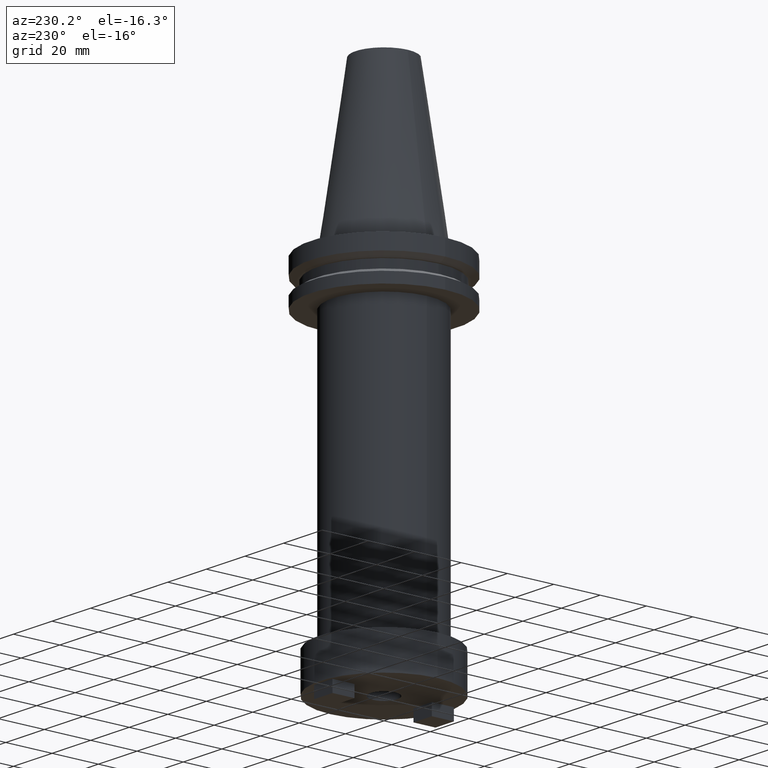
[diagram: clean part render]
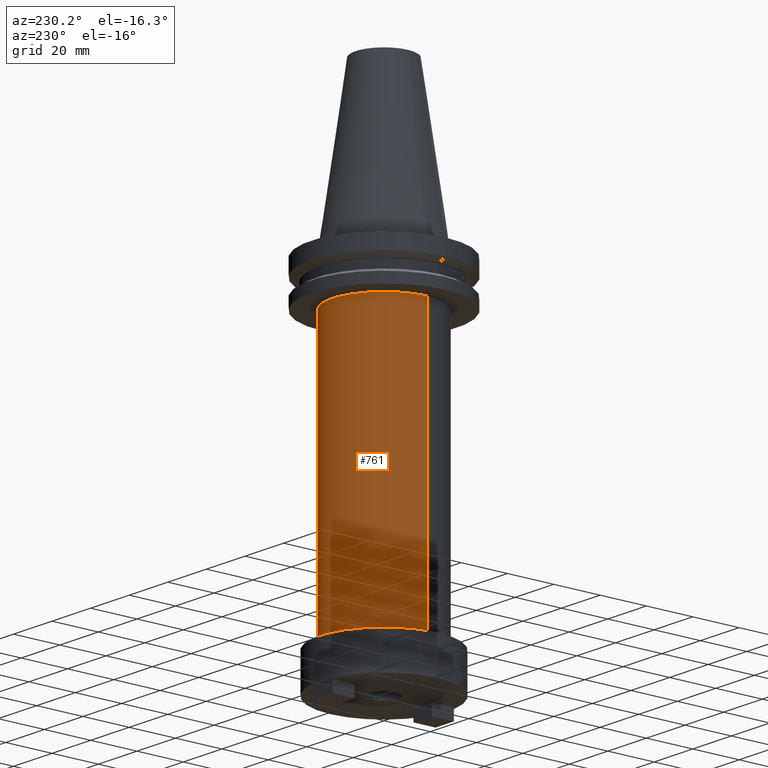
[diagram: same view with one face highlighted and labeled with its STEP entity id]
A machine part, auxiliary view. The second image highlights one B-rep face of the part: STEP entity #761.
In plain terms, the highlighted cylindrical surface (partial cylindrical patch) has radius 22.225 mm, axis along (-0, -0, 1).
Its self-contained STEP definition (entity closure, byte-faithful):
#27 = AXIS2_PLACEMENT_3D ( 'NONE', #956, #882, #970 ) ;
#29 = FACE_OUTER_BOUND ( 'NONE', #979, .T. ) ;
#78 = VERTEX_POINT ( 'NONE', #347 ) ;
#128 = EDGE_CURVE ( 'NONE', #78, #230, #841, .T. ) ;
#157 = VECTOR ( 'NONE', #470, 1000.000000000000000 ) ;
#159 = VERTEX_POINT ( 'NONE', #606 ) ;
#172 = DIRECTION ( 'NONE',  ( 1.000000000000000000, 0.000000000000000000, 0.000000000000000000 ) ) ;
#190 = CIRCLE ( 'NONE', #346, 22.22500000000000142 ) ;
#230 = VERTEX_POINT ( 'NONE', #370 ) ;
#240 = DIRECTION ( 'NONE',  ( -0.000000000000000000, -0.000000000000000000, 1.000000000000000000 ) ) ;
#283 = CYLINDRICAL_SURFACE ( 'NONE', #27, 22.22500000000000142 ) ;
#326 = EDGE_CURVE ( 'NONE', #667, #230, #1067, .T. ) ;
#346 = AXIS2_PLACEMENT_3D ( 'NONE', #645, #240, #568 ) ;
#347 = CARTESIAN_POINT ( 'NONE',  ( 22.22500000000000142, 0.000000000000000000, -19.04999999999999716 ) ) ;
#370 = CARTESIAN_POINT ( 'NONE',  ( -22.22500000000000142, 2.721777511104992849E-15, -19.04999999999999716 ) ) ;
#438 = EDGE_CURVE ( 'NONE', #159, #667, #190, .T. ) ;
#470 = DIRECTION ( 'NONE',  ( -0.000000000000000000, -0.000000000000000000, 1.000000000000000000 ) ) ;
#488 = CARTESIAN_POINT ( 'NONE',  ( 22.22500000000000142, 0.000000000000000000, 68.25000000000000000 ) ) ;
#504 = AXIS2_PLACEMENT_3D ( 'NONE', #769, #1089, #172 ) ;
#568 = DIRECTION ( 'NONE',  ( 1.000000000000000000, 0.000000000000000000, 0.000000000000000000 ) ) ;
#606 = CARTESIAN_POINT ( 'NONE',  ( 22.22500000000000142, 0.000000000000000000, -136.6500000000000057 ) ) ;
#636 = ORIENTED_EDGE ( 'NONE', *, *, #875, .F. ) ;
#640 = DIRECTION ( 'NONE',  ( -0.000000000000000000, -0.000000000000000000, 1.000000000000000000 ) ) ;
#645 = CARTESIAN_POINT ( 'NONE',  ( 0.000000000000000000, 0.000000000000000000, -136.6500000000000057 ) ) ;
#666 = CARTESIAN_POINT ( 'NONE',  ( -22.22500000000000142, 2.721777511104992849E-15, 68.25000000000000000 ) ) ;
#667 = VERTEX_POINT ( 'NONE', #795 ) ;
#718 = LINE ( 'NONE', #488, #157 ) ;
#719 = ORIENTED_EDGE ( 'NONE', *, *, #326, .T. ) ;
#761 = ADVANCED_FACE ( 'NONE', ( #29 ), #283, .T. ) ;
#769 = CARTESIAN_POINT ( 'NONE',  ( 0.000000000000000000, 0.000000000000000000, -19.04999999999999716 ) ) ;
#778 = VECTOR ( 'NONE', #640, 1000.000000000000000 ) ;
#795 = CARTESIAN_POINT ( 'NONE',  ( -22.22500000000000142, 2.721777511104992849E-15, -136.6500000000000057 ) ) ;
#841 = CIRCLE ( 'NONE', #504, 22.22500000000000142 ) ;
#875 = EDGE_CURVE ( 'NONE', #159, #78, #718, .T. ) ;
#882 = DIRECTION ( 'NONE',  ( -0.000000000000000000, -0.000000000000000000, 1.000000000000000000 ) ) ;
#951 = ORIENTED_EDGE ( 'NONE', *, *, #128, .F. ) ;
#956 = CARTESIAN_POINT ( 'NONE',  ( 0.000000000000000000, 0.000000000000000000, 68.25000000000000000 ) ) ;
#970 = DIRECTION ( 'NONE',  ( 1.000000000000000000, 0.000000000000000000, 0.000000000000000000 ) ) ;
#979 = EDGE_LOOP ( 'NONE', ( #1034, #719, #951, #636 ) ) ;
#1034 = ORIENTED_EDGE ( 'NONE', *, *, #438, .T. ) ;
#1067 = LINE ( 'NONE', #666, #778 ) ;
#1089 = DIRECTION ( 'NONE',  ( -0.000000000000000000, -0.000000000000000000, 1.000000000000000000 ) ) ;